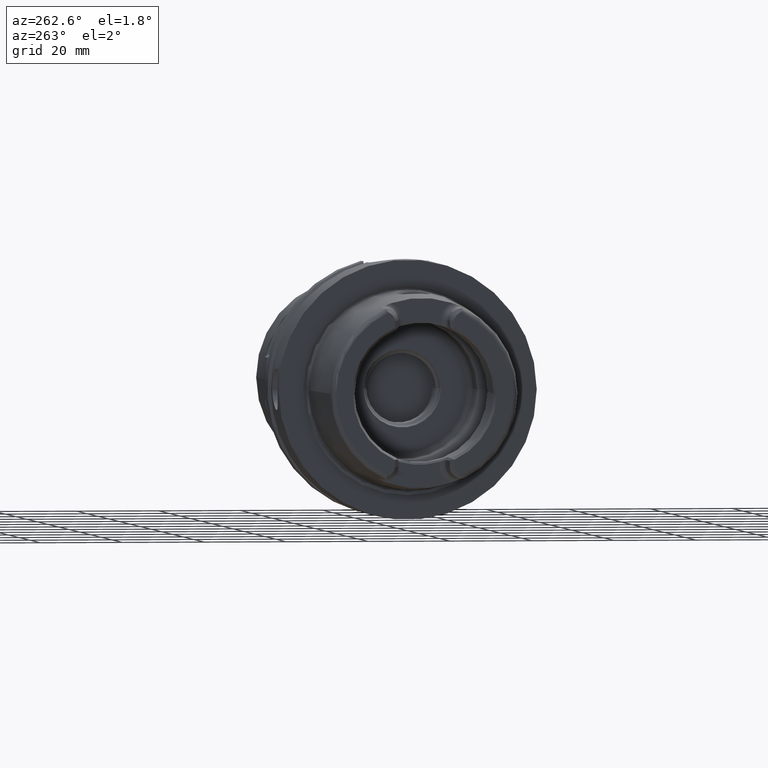
[diagram: clean part render]
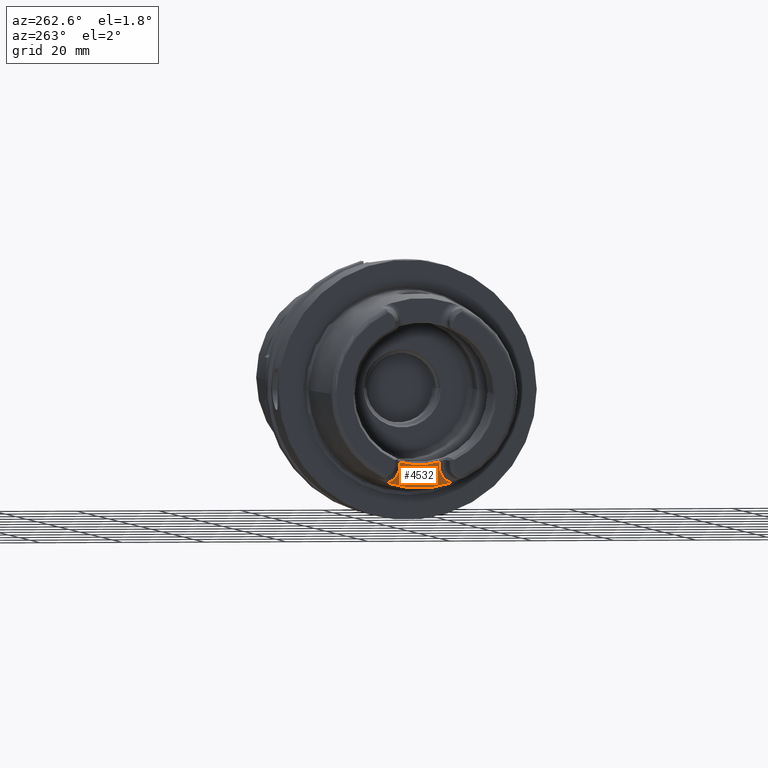
[diagram: same view with one face highlighted and labeled with its STEP entity id]
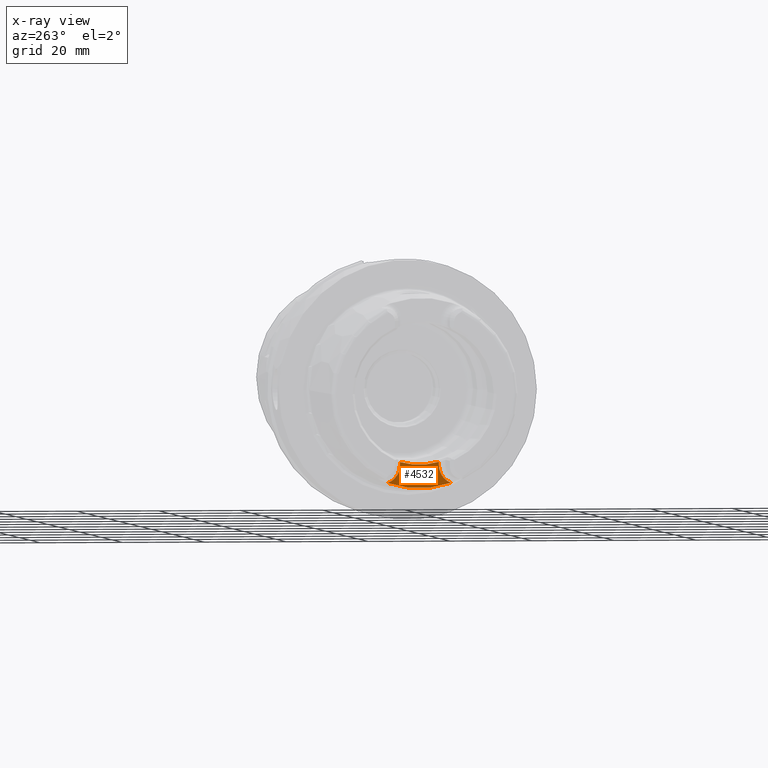
[diagram: x-ray of the same camera — body ghosted, the highlighted face saturated]
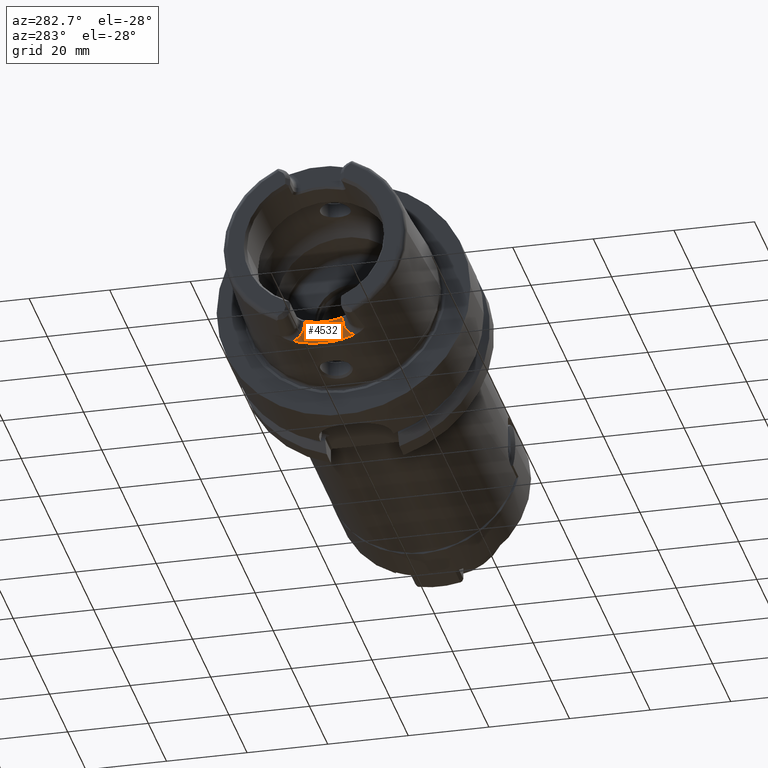
[diagram: same view with one face highlighted and labeled with its STEP entity id]
A machine part, auxiliary view. The second image highlights one B-rep face of the part: STEP entity #4532.
The next image is the same camera in x-ray: the body ghosted, the highlighted face saturated — about 0% of this face is hidden behind the body in this view.
A second angle (auxiliary view) of the same face is appended — the face is thin or edge-on in the first view.
In plain terms, the highlighted planar face has unit normal (-1, 0, 0).
Its self-contained STEP definition (entity closure, byte-faithful):
#737=CARTESIAN_POINT('',(-2.2E1,-7.723914364163E0,-2.189606426911E1));
#751=CARTESIAN_POINT('',(-2.2E1,0.E0,0.E0));
#752=DIRECTION('',(1.E0,0.E0,0.E0));
#753=DIRECTION('',(0.E0,-3.326627708379E-1,-9.430458530201E-1));
#754=AXIS2_PLACEMENT_3D('',#751,#752,#753);
#844=CARTESIAN_POINT('',(-2.2E1,7.723914364163E0,-2.189606426911E1));
#921=CARTESIAN_POINT('',(-2.2E1,-4.769999999986E0,-1.681708000839E1));
#922=CARTESIAN_POINT('',(-2.2E1,-4.148583737705E0,-1.699873969073E1));
#923=CARTESIAN_POINT('',(-2.2E1,-2.894384068615E0,-1.728890718055E1));
#924=CARTESIAN_POINT('',(-2.2E1,-9.681288020891E-1,-1.750922547308E1));
#925=CARTESIAN_POINT('',(-2.2E1,9.681288020851E-1,-1.750922547308E1));
#926=CARTESIAN_POINT('',(-2.2E1,2.894384068608E0,-1.728890718055E1));
#927=CARTESIAN_POINT('',(-2.2E1,4.148583737702E0,-1.699873969073E1));
#928=CARTESIAN_POINT('',(-2.2E1,4.769999999986E0,-1.681708000839E1));
#930=DIRECTION('',(0.E0,-1.654478599520E-11,-1.E0));
#931=VECTOR('',#930,8.529199916086E-1);
#932=CARTESIAN_POINT('',(-2.2E1,-4.769999999986E0,-1.681708000839E1));
#933=LINE('',#932,#931);
#934=CARTESIAN_POINT('',(-2.2E1,-9.27E0,-1.767E1));
#935=DIRECTION('',(-1.E0,0.E0,0.E0));
#936=DIRECTION('',(0.E0,1.E0,0.E0));
#937=AXIS2_PLACEMENT_3D('',#934,#935,#936);
#939=CARTESIAN_POINT('',(-2.2E1,9.27E0,-1.767E1));
#940=DIRECTION('',(-1.E0,0.E0,0.E0));
#941=DIRECTION('',(0.E0,-3.435745857417E-1,-9.391253931358E-1));
#942=AXIS2_PLACEMENT_3D('',#939,#940,#941);
#944=DIRECTION('',(0.E0,-1.724560680178E-11,1.E0));
#945=VECTOR('',#944,8.529199916082E-1);
#946=CARTESIAN_POINT('',(-2.2E1,4.770000000001E0,-1.767E1));
#947=LINE('',#946,#945);
#3139=VERTEX_POINT('',#737);
#3140=VERTEX_POINT('',#844);
#3144=CARTESIAN_POINT('',(-2.2E1,-4.77E0,-1.767E1));
#3146=VERTEX_POINT('',#3144);
#3148=CARTESIAN_POINT('',(-2.2E1,4.77E0,-1.767E1));
#3150=VERTEX_POINT('',#3148);
#3156=VERTEX_POINT('',#921);
#3157=VERTEX_POINT('',#928);
#4517=CARTESIAN_POINT('',(-2.2E1,0.E0,0.E0));
#4518=DIRECTION('',(-1.E0,0.E0,0.E0));
#4519=DIRECTION('',(0.E0,0.E0,1.E0));
#4520=AXIS2_PLACEMENT_3D('',#4517,#4518,#4519);
#4521=PLANE('',#4520);
#4523=ORIENTED_EDGE('',*,*,#4522,.F.);
#4525=ORIENTED_EDGE('',*,*,#4524,.T.);
#4526=ORIENTED_EDGE('',*,*,#4313,.T.);
#4527=ORIENTED_EDGE('',*,*,#4332,.T.);
#4528=ORIENTED_EDGE('',*,*,#4389,.T.);
#4529=ORIENTED_EDGE('',*,*,#4510,.T.);
#4530=EDGE_LOOP('',(#4523,#4525,#4526,#4527,#4528,#4529));
#4531=FACE_OUTER_BOUND('',#4530,.F.);
#4532=ADVANCED_FACE('',(#4531),#4521,.T.);
#755=CIRCLE('',#754,2.321845136054E1);
#929=B_SPLINE_CURVE_WITH_KNOTS('',3,(#921,#922,#923,#924,#925,#926,#927,#928),
.UNSPECIFIED.,.F.,.F.,(4,1,1,1,1,4),(0.E0,2.E-1,4.E-1,6.E-1,8.E-1,1.E0),
.UNSPECIFIED.);
#938=CIRCLE('',#937,4.5E0);
#943=CIRCLE('',#942,4.5E0);
#4313=EDGE_CURVE('',#3146,#3139,#938,.T.);
#4332=EDGE_CURVE('',#3139,#3140,#755,.T.);
#4389=EDGE_CURVE('',#3140,#3150,#943,.T.);
#4510=EDGE_CURVE('',#3150,#3157,#947,.T.);
#4522=EDGE_CURVE('',#3156,#3157,#929,.T.);
#4524=EDGE_CURVE('',#3156,#3146,#933,.T.);